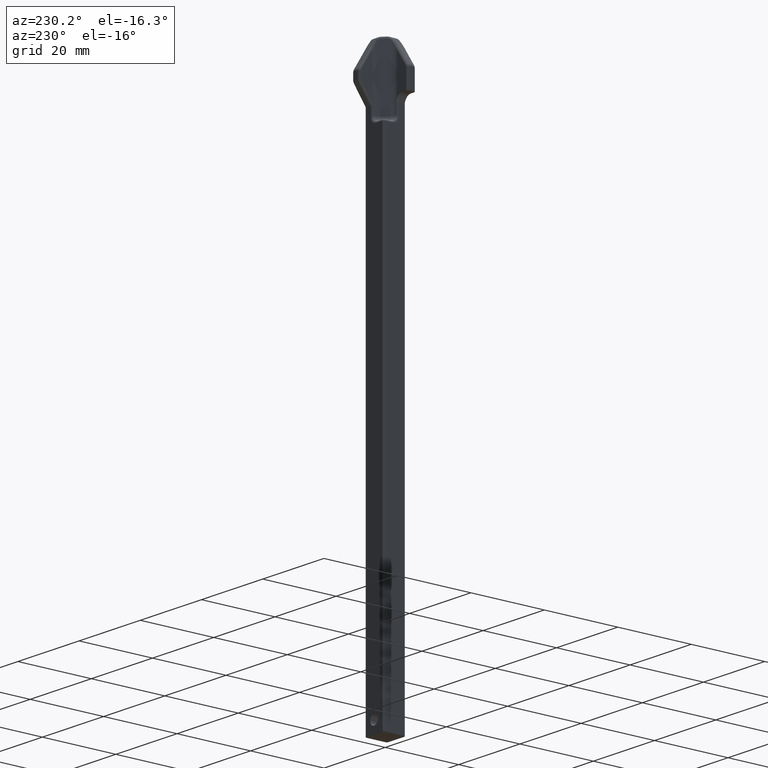
[diagram: clean part render]
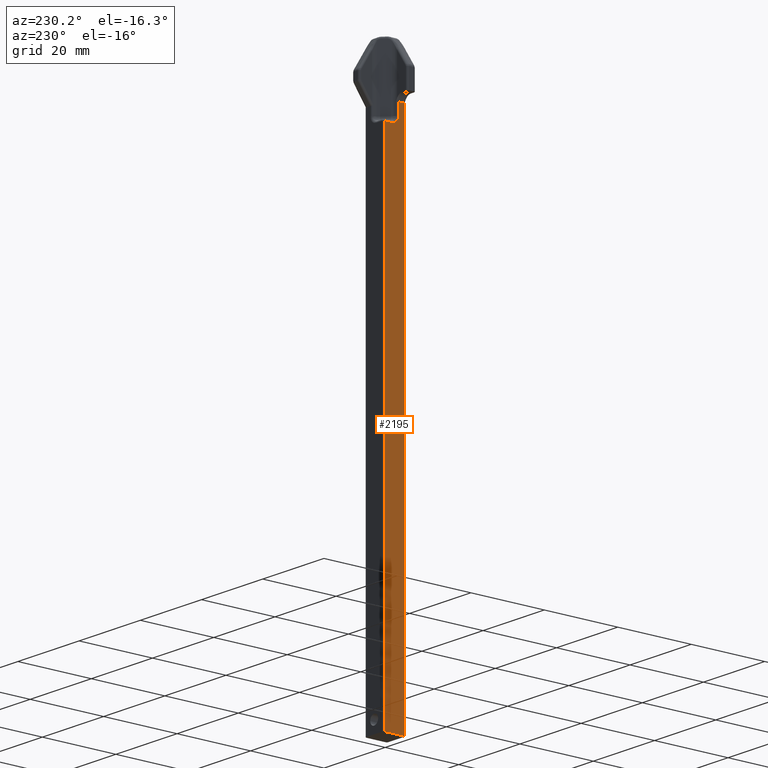
[diagram: same view with one face highlighted and labeled with its STEP entity id]
A machine part, auxiliary view. The second image highlights one B-rep face of the part: STEP entity #2195.
In plain terms, the highlighted planar face has unit normal (-1, 0, 0).
Its self-contained STEP definition (entity closure, byte-faithful):
#16=DIRECTION('',(0.E0,-1.E0,0.E0));
#17=VECTOR('',#16,2.07E-1);
#18=CARTESIAN_POINT('',(-1.185E-1,1.035E-1,-3.76E0));
#19=LINE('',#18,#17);
#573=DIRECTION('',(0.E0,-1.E0,1.156685331388E-14));
#574=VECTOR('',#573,5.758989041349E-2);
#575=CARTESIAN_POINT('',(-1.185E-1,-4.591010958960E-2,1.67E0));
#576=LINE('',#575,#574);
#577=DIRECTION('',(0.E0,-5.703387424708E-13,1.E0));
#578=VECTOR('',#577,5.43E0);
#579=CARTESIAN_POINT('',(-1.185E-1,-1.035E-1,-3.76E0));
#580=LINE('',#579,#578);
#581=DIRECTION('',(-3.481773965488E-9,-1.061051774601E-8,-1.E0));
#582=VECTOR('',#581,5.239997477484E0);
#583=CARTESIAN_POINT('',(-1.184999817555E-1,1.035000555991E-1,
1.479997477484E0));
#584=LINE('',#583,#582);
#585=DIRECTION('',(1.138013792933E-6,9.999999992584E-1,-3.849497031452E-5));
#586=VECTOR('',#585,6.552844688249E-2);
#587=CARTESIAN_POINT('',(-1.185000563278E-1,3.797160876519E-2,1.48E0));
#588=LINE('',#587,#586);
#589=CARTESIAN_POINT('',(-1.184999872561E-1,1.001828996259E-2,
1.482848633790E0));
#590=CARTESIAN_POINT('',(-1.184999069586E-1,1.454548303018E-2,
1.481906305012E0));
#591=CARTESIAN_POINT('',(-1.185000993493E-1,2.373058987154E-2,
1.480487111184E0));
#592=CARTESIAN_POINT('',(-1.184998943427E-1,3.318063624746E-2,
1.480000180345E0));
#593=CARTESIAN_POINT('',(-1.185000563278E-1,3.797160876519E-2,1.48E0));
#595=CARTESIAN_POINT('',(-1.185000411448E-1,-4.591010958966E-2,
1.550000000002E0));
#596=CARTESIAN_POINT('',(-1.185001724086E-1,-4.591068214725E-2,
1.544875765180E0));
#597=CARTESIAN_POINT('',(-1.184999199845E-1,-4.476376848029E-2,
1.535319543352E0));
#598=CARTESIAN_POINT('',(-1.185000214413E-1,-4.070260073908E-2,
1.523021288136E0));
#599=CARTESIAN_POINT('',(-1.184999942503E-1,-3.515551704627E-2,
1.512834548923E0));
#600=CARTESIAN_POINT('',(-1.185000015574E-1,-2.874545070944E-2,
1.504563986930E0));
#601=CARTESIAN_POINT('',(-1.184999995201E-1,-2.192709078928E-2,
1.497999614225E0));
#602=CARTESIAN_POINT('',(-1.185000003622E-1,-1.502002287821E-2,
1.492900338807E0));
#603=CARTESIAN_POINT('',(-1.184999990311E-1,-8.226912756042E-3,
1.489025287263E0));
#604=CARTESIAN_POINT('',(-1.185000035133E-1,-1.702519902051E-3,
1.486167908517E0));
#605=CARTESIAN_POINT('',(-1.184999869155E-1,4.430505628113E-3,
1.484141367247E0));
#606=CARTESIAN_POINT('',(-1.185000281882E-1,8.209572052713E-3,
1.483225029769E0));
#607=CARTESIAN_POINT('',(-1.184999872561E-1,1.001828996259E-2,
1.482848633790E0));
#609=DIRECTION('',(-3.428737335780E-7,-4.730590919072E-13,-9.999999999999E-1));
#610=VECTOR('',#609,1.199999999979E-1);
#611=CARTESIAN_POINT('',(-1.185E-1,-4.591010958960E-2,1.67E0));
#612=LINE('',#611,#610);
#1145=CARTESIAN_POINT('',(-1.185E-1,1.035E-1,-3.76E0));
#1147=VERTEX_POINT('',#1145);
#1149=CARTESIAN_POINT('',(-1.185E-1,-1.035E-1,-3.76E0));
#1150=VERTEX_POINT('',#1149);
#1187=VERTEX_POINT('',#595);
#1188=VERTEX_POINT('',#607);
#1193=CARTESIAN_POINT('',(-1.185000563278E-1,3.797160876519E-2,1.48E0));
#1194=CARTESIAN_POINT('',(-1.184999817555E-1,1.035000555991E-1,
1.479997477484E0));
#1195=VERTEX_POINT('',#1193);
#1196=VERTEX_POINT('',#1194);
#1215=CARTESIAN_POINT('',(-1.185E-1,-1.035E-1,1.67E0));
#1217=VERTEX_POINT('',#1215);
#1223=CARTESIAN_POINT('',(-1.185E-1,-4.591010958960E-2,1.67E0));
#1224=VERTEX_POINT('',#1223);
#2174=CARTESIAN_POINT('',(-1.185E-1,1.185E-1,-3.76E0));
#2175=DIRECTION('',(-1.E0,0.E0,0.E0));
#2176=DIRECTION('',(0.E0,-1.E0,0.E0));
#2177=AXIS2_PLACEMENT_3D('',#2174,#2175,#2176);
#2178=PLANE('',#2177);
#2180=ORIENTED_EDGE('',*,*,#2179,.T.);
#2181=ORIENTED_EDGE('',*,*,#2169,.F.);
#2182=ORIENTED_EDGE('',*,*,#1355,.F.);
#2184=ORIENTED_EDGE('',*,*,#2183,.F.);
#2186=ORIENTED_EDGE('',*,*,#2185,.F.);
#2188=ORIENTED_EDGE('',*,*,#2187,.F.);
#2190=ORIENTED_EDGE('',*,*,#2189,.F.);
#2192=ORIENTED_EDGE('',*,*,#2191,.F.);
#2193=EDGE_LOOP('',(#2180,#2181,#2182,#2184,#2186,#2188,#2190,#2192));
#2194=FACE_OUTER_BOUND('',#2193,.F.);
#2195=ADVANCED_FACE('',(#2194),#2178,.T.);
#594=B_SPLINE_CURVE_WITH_KNOTS('',3,(#589,#590,#591,#592,#593),.UNSPECIFIED.,
.F.,.F.,(4,1,4),(0.E0,5.E-1,1.E0),.UNSPECIFIED.);
#608=B_SPLINE_CURVE_WITH_KNOTS('',3,(#595,#596,#597,#598,#599,#600,#601,#602,
#603,#604,#605,#606,#607),.UNSPECIFIED.,.F.,.F.,(4,1,1,1,1,1,1,1,1,1,4),(0.E0,
1.E-1,2.E-1,3.E-1,4.E-1,5.E-1,6.E-1,7.E-1,8.E-1,9.E-1,1.E0),.UNSPECIFIED.);
#1355=EDGE_CURVE('',#1147,#1150,#19,.T.);
#2169=EDGE_CURVE('',#1150,#1217,#580,.T.);
#2179=EDGE_CURVE('',#1224,#1217,#576,.T.);
#2183=EDGE_CURVE('',#1196,#1147,#584,.T.);
#2185=EDGE_CURVE('',#1195,#1196,#588,.T.);
#2187=EDGE_CURVE('',#1188,#1195,#594,.T.);
#2189=EDGE_CURVE('',#1187,#1188,#608,.T.);
#2191=EDGE_CURVE('',#1224,#1187,#612,.T.);